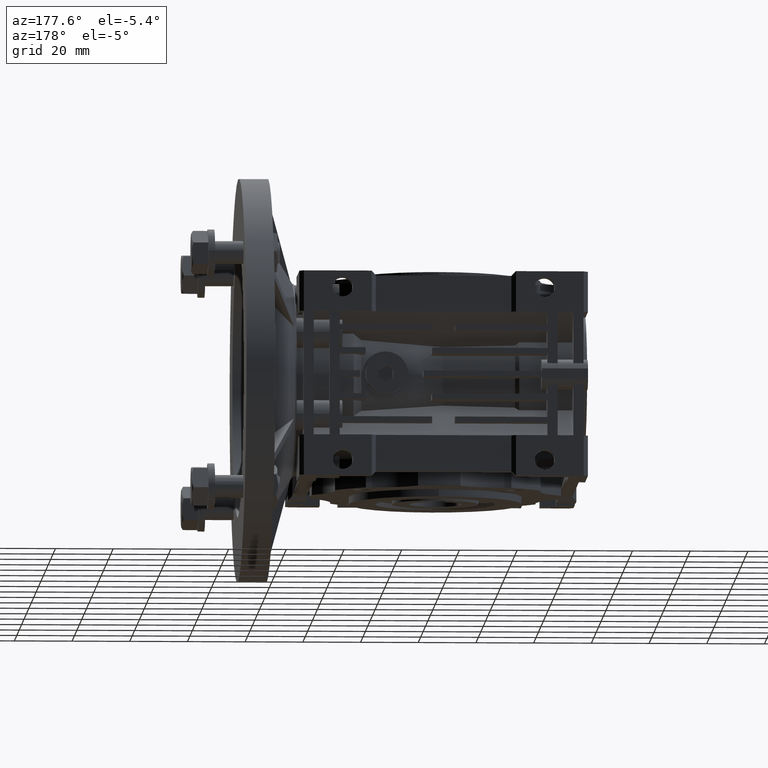
[diagram: clean part render]
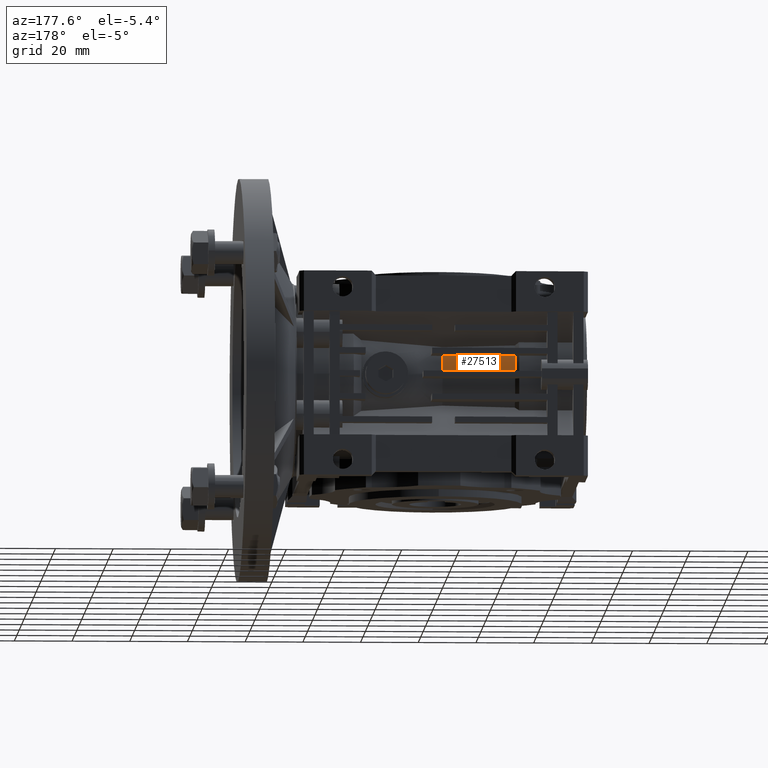
[diagram: same view with one face highlighted and labeled with its STEP entity id]
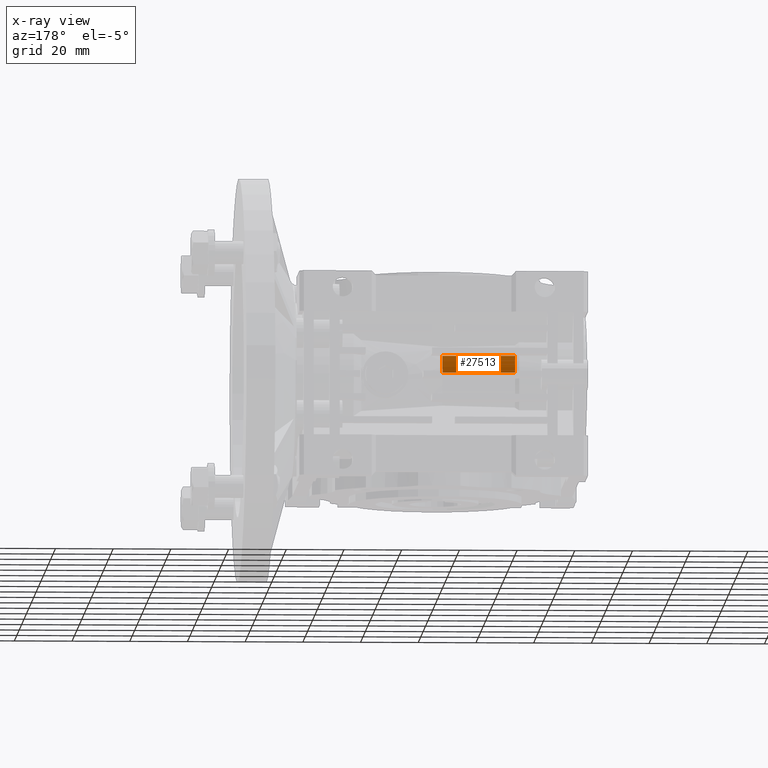
[diagram: x-ray of the same camera — body ghosted, the highlighted face saturated]
A machine part, auxiliary view. The second image highlights one B-rep face of the part: STEP entity #27513.
The next image is the same camera in x-ray: the body ghosted, the highlighted face saturated — about 0% of this face is hidden behind the body in this view.
In plain terms, the highlighted conical surface has half-angle 2.006 deg.
Its self-contained STEP definition (entity closure, byte-faithful):
#2061 = CARTESIAN_POINT ( 'NONE',  ( -1.671085979116489865E-14, 61.22645754712739574, 1.000000000000000000 ) ) ;
#5154 = DIRECTION ( 'NONE',  ( 1.000000000000000000, -6.271029285049460190E-16, 0.000000000000000000 ) ) ;
#5314 = CARTESIAN_POINT ( 'NONE',  ( -25.12999999999999901, 40.00000000000000000, 0.000000000000000000 ) ) ;
#6250 = AXIS2_PLACEMENT_3D ( 'NONE', #30449, #24432, #17363 ) ;
#7592 = CARTESIAN_POINT ( 'NONE',  ( -16.75333289775030110, 61.81376140191559898, 1.000000000000000000 ) ) ;
#10324 = DIRECTION ( 'NONE',  ( 6.271029285049460190E-16, 1.000000000000000000, 0.000000000000000000 ) ) ;
#10710 = CARTESIAN_POINT ( 'NONE',  ( -1.671085979116489865E-14, 61.22645754712739574, 1.000000000000000000 ) ) ;
#11105 = CARTESIAN_POINT ( 'NONE',  ( 0.000000000000000000, 40.00000000000000000, 0.000000000000000000 ) ) ;
#12352 = CARTESIAN_POINT ( 'NONE',  ( -16.75330694070400028, 60.68452409432880046, 7.000000000000000000 ) ) ;
#12539 = VERTEX_POINT ( 'NONE', #22757 ) ;
#14169 = B_SPLINE_CURVE_WITH_KNOTS ( 'NONE', 3,
 ( #17359, #12352, #14416, #17522 ),
 .UNSPECIFIED., .F., .F.,
 ( 4, 4 ),
 ( 3.469446951953614959E-18, 0.02514719429118085145 ),
 .UNSPECIFIED. ) ;
#14416 = CARTESIAN_POINT ( 'NONE',  ( -8.376638985983030139, 60.37463233108000082, 7.000000000000000000 ) ) ;
#14686 = CARTESIAN_POINT ( 'NONE',  ( -8.376666212986579652, 61.52011620316530127, 1.000000000000000000 ) ) ;
#15550 = VERTEX_POINT ( 'NONE', #10710 ) ;
#17359 = CARTESIAN_POINT ( 'NONE',  ( -25.12999999999999901, 60.99373477969080426, 7.000000000000000000 ) ) ;
#17363 = DIRECTION ( 'NONE',  ( 0.000000000000000000, 1.000000000000000000, 0.000000000000000000 ) ) ;
#17522 = CARTESIAN_POINT ( 'NONE',  ( 1.705157778555975015E-14, 60.06396022723330219, 7.000000000000000000 ) ) ;
#18244 = EDGE_CURVE ( 'NONE', #15550, #29483, #23362, .T. ) ;
#18487 = ORIENTED_EDGE ( 'NONE', *, *, #25473, .T. ) ;
#20042 = B_SPLINE_CURVE_WITH_KNOTS ( 'NONE', 3,
 ( #2061, #14686, #7592, #23139 ),
 .UNSPECIFIED., .F., .F.,
 ( 4, 4 ),
 ( 5.950154215845089713E-19, 0.02514543597256789498 ),
 .UNSPECIFIED. ) ;
#20884 = ORIENTED_EDGE ( 'NONE', *, *, #26417, .T. ) ;
#20936 = ORIENTED_EDGE ( 'NONE', *, *, #32801, .T. ) ;
#21127 = CONICAL_SURFACE ( 'NONE', #6250, 22.13000000000000256, 0.03500360379243613873 ) ;
#21301 = DIRECTION ( 'NONE',  ( -2.997129148904920159E-16, -1.000000000000000000, 0.000000000000000000 ) ) ;
#21646 = DIRECTION ( 'NONE',  ( 1.000000000000000000, -2.997129148904919666E-16, 0.000000000000000000 ) ) ;
#22562 = VERTEX_POINT ( 'NONE', #25849 ) ;
#22757 = CARTESIAN_POINT ( 'NONE',  ( -25.12999999999999901, 62.10739469046499295, 1.000000000000000000 ) ) ;
#23139 = CARTESIAN_POINT ( 'NONE',  ( -25.12999999999999901, 62.10739469046499295, 1.000000000000000000 ) ) ;
#23362 = CIRCLE ( 'NONE', #26105, 21.25000000000000000 ) ;
#23408 = ORIENTED_EDGE ( 'NONE', *, *, #18244, .F. ) ;
#24432 = DIRECTION ( 'NONE',  ( -1.000000000000000000, 0.000000000000000000, 0.000000000000000000 ) ) ;
#25473 = EDGE_CURVE ( 'NONE', #15550, #12539, #20042, .T. ) ;
#25849 = CARTESIAN_POINT ( 'NONE',  ( -25.12999999999999901, 60.99373477969080426, 7.000000000000000000 ) ) ;
#26105 = AXIS2_PLACEMENT_3D ( 'NONE', #11105, #21646, #21301 ) ;
#26417 = EDGE_CURVE ( 'NONE', #12539, #22562, #32664, .T. ) ;
#27513 = ADVANCED_FACE ( 'NONE', ( #32893 ), #21127, .T. ) ;
#29483 = VERTEX_POINT ( 'NONE', #31781 ) ;
#30449 = CARTESIAN_POINT ( 'NONE',  ( -25.12999999999999901, 40.00000000000000000, 0.000000000000000000 ) ) ;
#31550 = AXIS2_PLACEMENT_3D ( 'NONE', #5314, #5154, #10324 ) ;
#31781 = CARTESIAN_POINT ( 'NONE',  ( 1.705157778555975015E-14, 60.06396022723330219, 7.000000000000000000 ) ) ;
#32664 = CIRCLE ( 'NONE', #31550, 22.13000000000000256 ) ;
#32801 = EDGE_CURVE ( 'NONE', #22562, #29483, #14169, .T. ) ;
#32893 = FACE_OUTER_BOUND ( 'NONE', #33419, .T. ) ;
#33419 = EDGE_LOOP ( 'NONE', ( #23408, #18487, #20884, #20936 ) ) ;